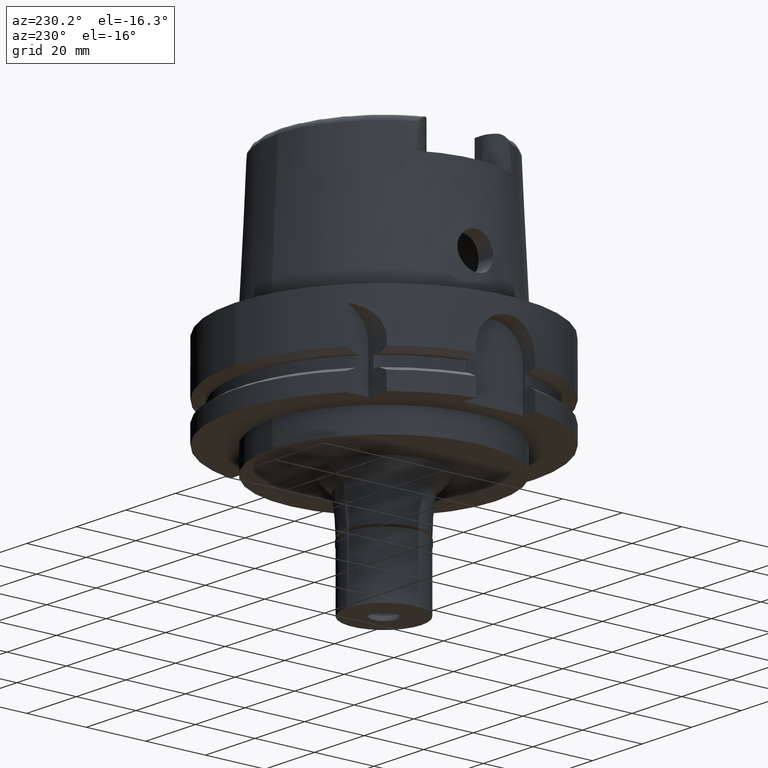
[diagram: clean part render]
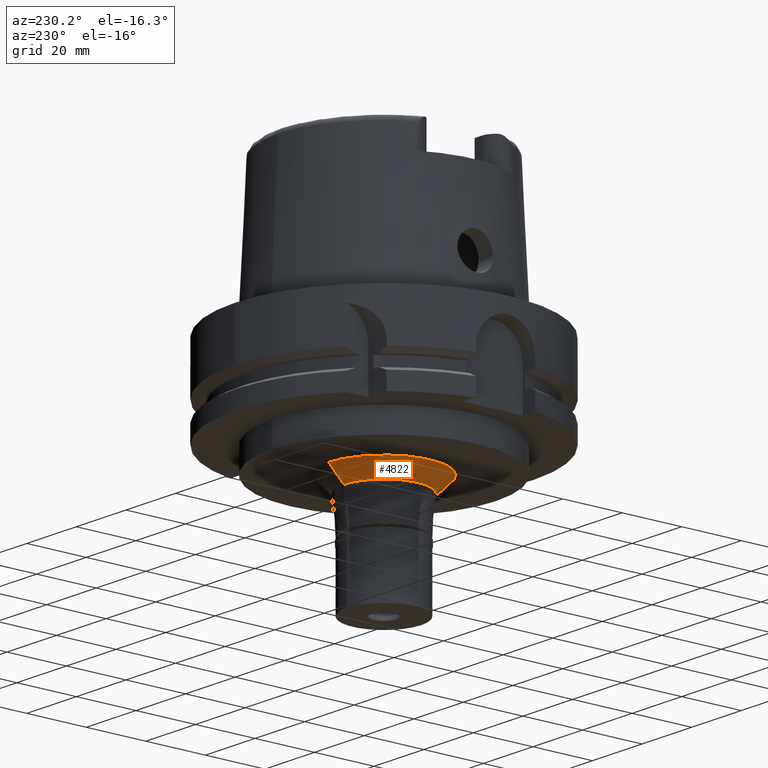
[diagram: same view with one face highlighted and labeled with its STEP entity id]
A machine part, auxiliary view. The second image highlights one B-rep face of the part: STEP entity #4822.
In plain terms, the highlighted conical surface has half-angle 45 deg.
Its self-contained STEP definition (entity closure, byte-faithful):
#300 = AXIS2_PLACEMENT_3D ( 'NONE', #2704, #3088, #3954 ) ;
#460 = CARTESIAN_POINT ( 'NONE',  ( 0.0000000000000000000, -18.52361736325000052, -37.00000000000000000 ) ) ;
#550 = EDGE_CURVE ( 'NONE', #712, #1030, #606, .T. ) ;
#606 = CIRCLE ( 'NONE', #3299, 13.52361736324999875 ) ;
#634 = ORIENTED_EDGE ( 'NONE', *, *, #1801, .T. ) ;
#712 = VERTEX_POINT ( 'NONE', #3341 ) ;
#815 = CARTESIAN_POINT ( 'NONE',  ( 0.0000000000000000000, -18.52361736325000052, -37.00000000000000000 ) ) ;
#850 = CIRCLE ( 'NONE', #300, 18.52361736325000052 ) ;
#944 = AXIS2_PLACEMENT_3D ( 'NONE', #4705, #3489, #2947 ) ;
#1015 = VERTEX_POINT ( 'NONE', #3368 ) ;
#1030 = VERTEX_POINT ( 'NONE', #2510 ) ;
#1113 = CONICAL_SURFACE ( 'NONE', #944, 16.02361736325000052, 0.7853981633972997312 ) ;
#1274 = CARTESIAN_POINT ( 'NONE',  ( 0.0000000000000000000, 0.0000000000000000000, -42.00000000000000000 ) ) ;
#1511 = ORIENTED_EDGE ( 'NONE', *, *, #550, .F. ) ;
#1594 = DIRECTION ( 'NONE',  ( 0.0000000000000000000, 0.7071067811862969954, -0.7071067811867980391 ) ) ;
#1616 = VECTOR ( 'NONE', #1594, 1000.000000000000000 ) ;
#1801 = EDGE_CURVE ( 'NONE', #4345, #1015, #850, .T. ) ;
#1824 = LINE ( 'NONE', #3145, #5077 ) ;
#2006 = LINE ( 'NONE', #460, #1616 ) ;
#2244 = EDGE_CURVE ( 'NONE', #1015, #1030, #1824, .T. ) ;
#2510 = CARTESIAN_POINT ( 'NONE',  ( 0.0000000000000000000, 13.52361736324999875, -42.00000000000000000 ) ) ;
#2704 = CARTESIAN_POINT ( 'NONE',  ( 0.0000000000000000000, 0.0000000000000000000, -37.00000000000000000 ) ) ;
#2843 = EDGE_LOOP ( 'NONE', ( #1511, #4788, #634, #3496 ) ) ;
#2947 = DIRECTION ( 'NONE',  ( 0.0000000000000000000, 1.000000000000000000, 0.0000000000000000000 ) ) ;
#2999 = FACE_OUTER_BOUND ( 'NONE', #2843, .T. ) ;
#3088 = DIRECTION ( 'NONE',  ( 0.0000000000000000000, 0.0000000000000000000, -1.000000000000000000 ) ) ;
#3093 = EDGE_CURVE ( 'NONE', #4345, #712, #2006, .T. ) ;
#3145 = CARTESIAN_POINT ( 'NONE',  ( 0.0000000000000000000, 18.52361736325000052, -37.00000000000000000 ) ) ;
#3299 = AXIS2_PLACEMENT_3D ( 'NONE', #1274, #4703, #5491 ) ;
#3341 = CARTESIAN_POINT ( 'NONE',  ( 0.0000000000000000000, -13.52361736324999875, -42.00000000000000000 ) ) ;
#3368 = CARTESIAN_POINT ( 'NONE',  ( 0.0000000000000000000, 18.52361736325000052, -37.00000000000000000 ) ) ;
#3489 = DIRECTION ( 'NONE',  ( 0.0000000000000000000, 0.0000000000000000000, 1.000000000000000000 ) ) ;
#3496 = ORIENTED_EDGE ( 'NONE', *, *, #2244, .T. ) ;
#3884 = DIRECTION ( 'NONE',  ( 0.0000000000000000000, -0.7071067811862969954, -0.7071067811867980391 ) ) ;
#3954 = DIRECTION ( 'NONE',  ( 0.0000000000000000000, -1.000000000000000000, 0.0000000000000000000 ) ) ;
#4345 = VERTEX_POINT ( 'NONE', #815 ) ;
#4703 = DIRECTION ( 'NONE',  ( 0.0000000000000000000, 0.0000000000000000000, -1.000000000000000000 ) ) ;
#4705 = CARTESIAN_POINT ( 'NONE',  ( 0.0000000000000000000, 0.0000000000000000000, -39.50000000000000000 ) ) ;
#4788 = ORIENTED_EDGE ( 'NONE', *, *, #3093, .F. ) ;
#4822 = ADVANCED_FACE ( 'NONE', ( #2999 ), #1113, .T. ) ;
#5077 = VECTOR ( 'NONE', #3884, 1000.000000000000000 ) ;
#5491 = DIRECTION ( 'NONE',  ( 0.0000000000000000000, -1.000000000000000000, 0.0000000000000000000 ) ) ;